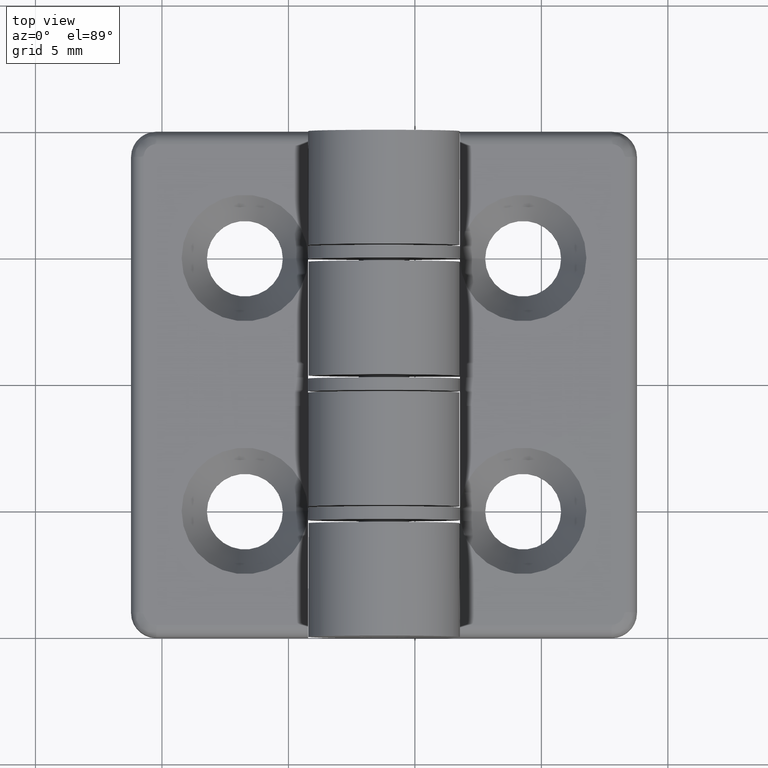
[diagram: clean part render]
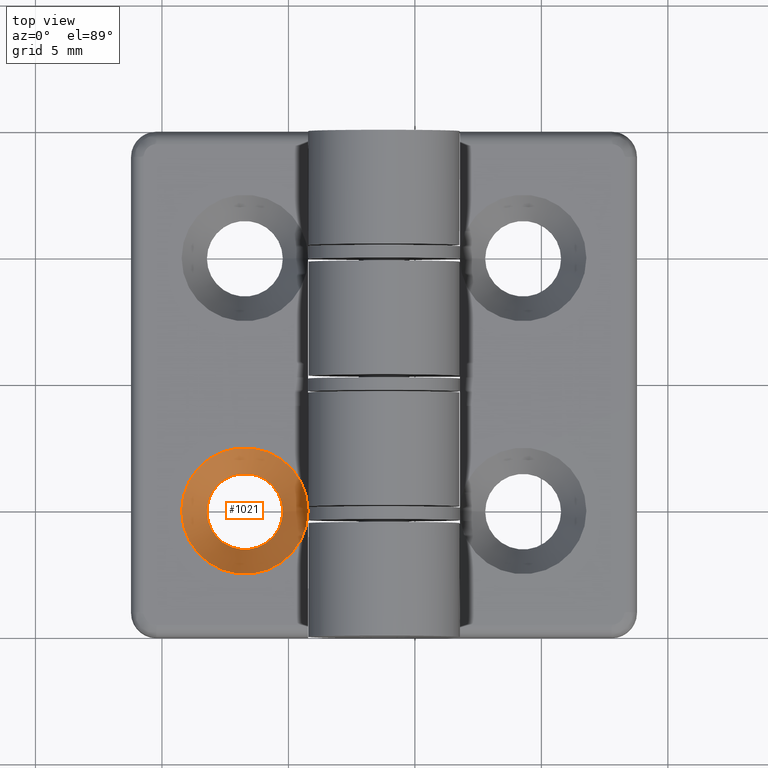
[diagram: same view with one face highlighted and labeled with its STEP entity id]
A machine part, top view. The second image highlights one B-rep face of the part: STEP entity #1021.
In plain terms, the highlighted conical surface has half-angle 35 deg.
Its self-contained STEP definition (entity closure, byte-faithful):
#40=FACE_BOUND('',#193,.T.);
#78=CONICAL_SURFACE('',#1106,2.,35.);
#123=FACE_OUTER_BOUND('',#192,.T.);
#192=EDGE_LOOP('',(#756));
#193=EDGE_LOOP('',(#757));
#429=CIRCLE('',#1100,2.5);
#433=CIRCLE('',#1107,1.5);
#498=VERTEX_POINT('',#1614);
#508=VERTEX_POINT('',#1640);
#599=EDGE_CURVE('',#498,#498,#429,.T.);
#611=EDGE_CURVE('',#508,#508,#433,.T.);
#756=ORIENTED_EDGE('',*,*,#599,.F.);
#757=ORIENTED_EDGE('',*,*,#611,.F.);
#1021=ADVANCED_FACE('',(#123,#40),#78,.F.);
#1100=AXIS2_PLACEMENT_3D('',#1616,#1255,#1256);
#1106=AXIS2_PLACEMENT_3D('',#1639,#1275,#1276);
#1107=AXIS2_PLACEMENT_3D('',#1641,#1277,#1278);
#1255=DIRECTION('center_axis',(1.11022302462516E-16,-1.,0.));
#1256=DIRECTION('ref_axis',(1.,1.11022302462516E-16,-1.90269584340215E-15));
#1275=DIRECTION('center_axis',(-1.11022302462516E-16,1.,0.));
#1276=DIRECTION('ref_axis',(1.,1.11022302462516E-16,-1.90269584340215E-15));
#1277=DIRECTION('center_axis',(-1.11022302462516E-16,1.,0.));
#1278=DIRECTION('ref_axis',(1.,1.11022302462516E-16,-1.90269584340215E-15));
#1614=CARTESIAN_POINT('',(-2.99999999999999,2.,5.00000000000001));
#1616=CARTESIAN_POINT('Origin',(-5.49999999999999,2.,5.00000000000001));
#1639=CARTESIAN_POINT('Origin',(-5.49999999999999,1.28592599662894,5.00000000000001));
#1640=CARTESIAN_POINT('',(-3.99999999999999,0.571851993257885,5.00000000000001));
#1641=CARTESIAN_POINT('Origin',(-5.49999999999999,0.571851993257886,5.00000000000001));